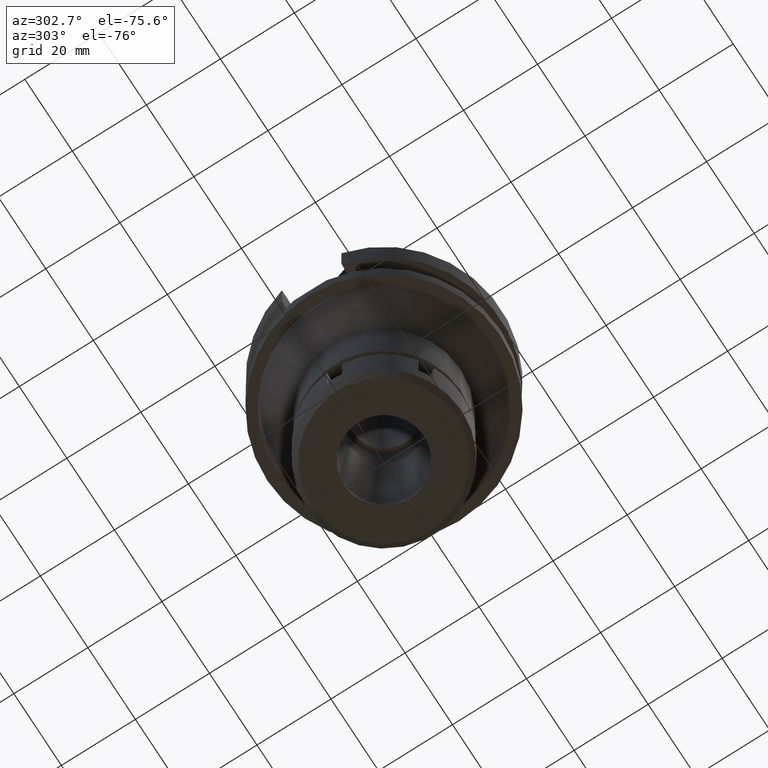
[diagram: clean part render]
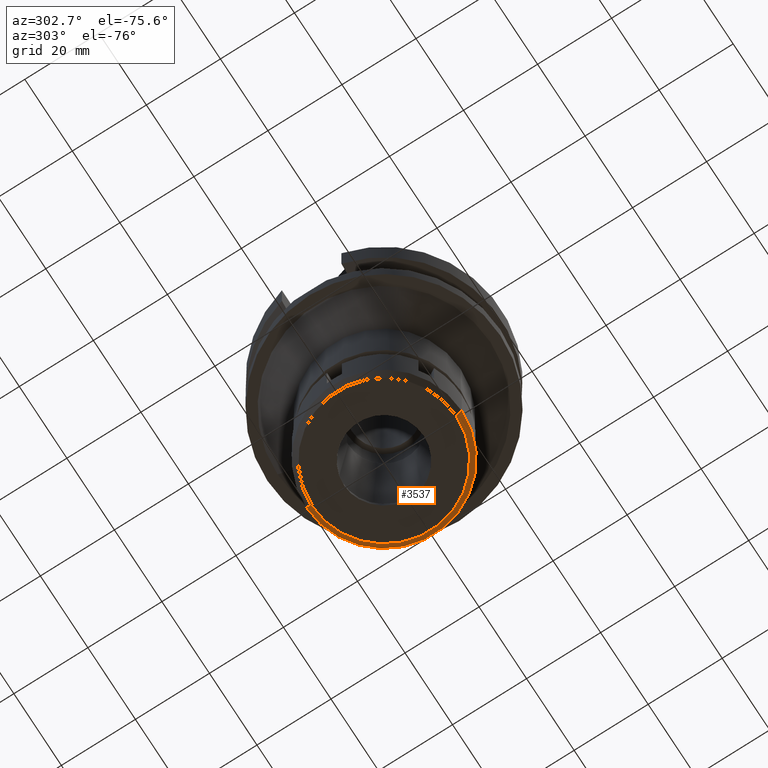
[diagram: same view with one face highlighted and labeled with its STEP entity id]
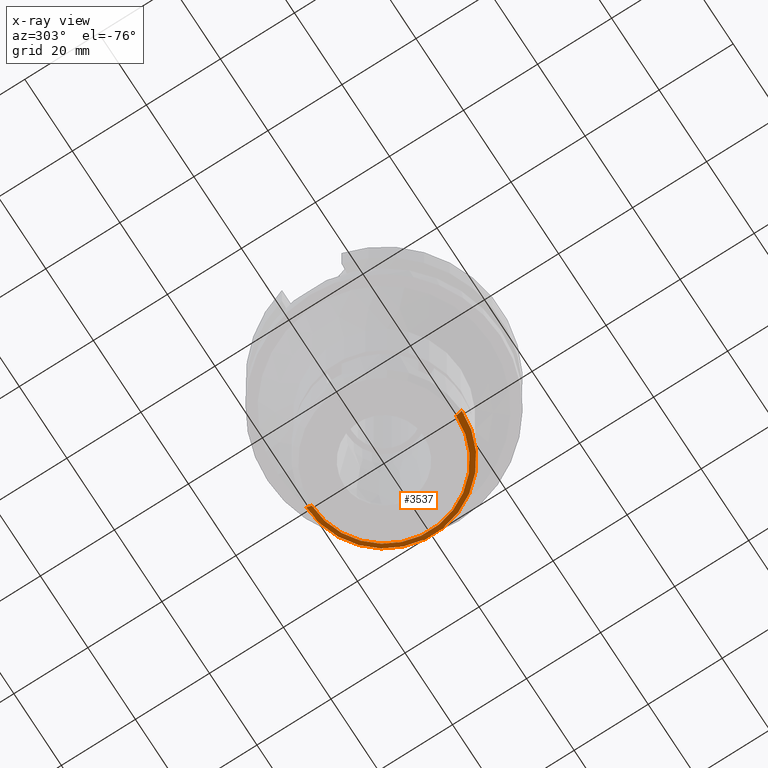
[diagram: x-ray of the same camera — body ghosted, the highlighted face saturated]
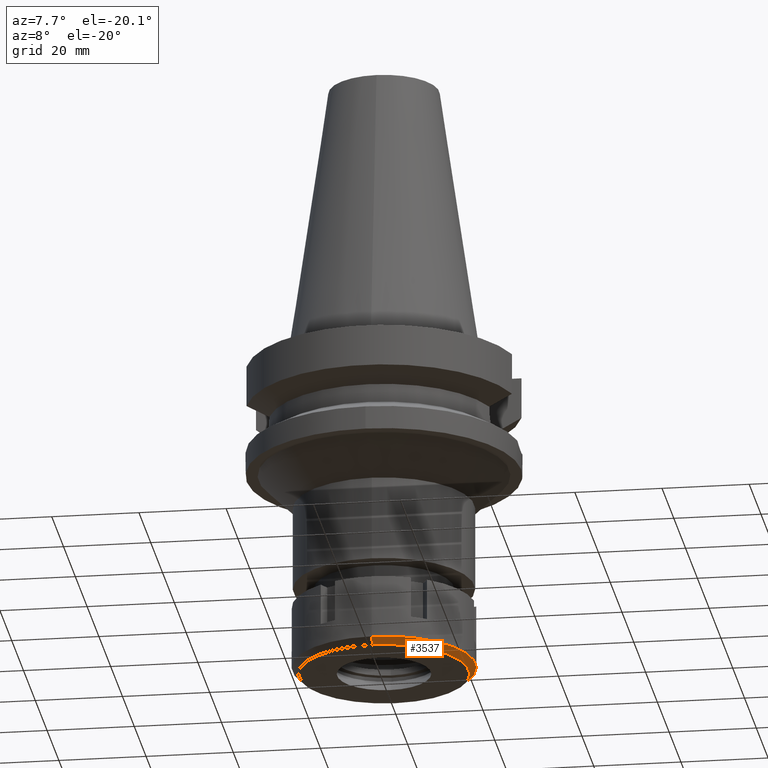
[diagram: same view with one face highlighted and labeled with its STEP entity id]
A machine part, auxiliary view. The second image highlights one B-rep face of the part: STEP entity #3537.
The next image is the same camera in x-ray: the body ghosted, the highlighted face saturated — about 0% of this face is hidden behind the body in this view.
A second angle (auxiliary view) of the same face is appended — the face is thin or edge-on in the first view.
In plain terms, the highlighted conical surface has half-angle 45 deg.
Its self-contained STEP definition (entity closure, byte-faithful):
#41 = CARTESIAN_POINT ( 'NONE',  ( 0.0000000000000000000, 21.00000000000000000, -14.50000000000000000 ) ) ;
#463 = AXIS2_PLACEMENT_3D ( 'NONE', #2139, #1320, #3248 ) ;
#619 = DIRECTION ( 'NONE',  ( 0.0000000000000000000, 0.7071067811865474617, -0.7071067811865474617 ) ) ;
#632 = DIRECTION ( 'NONE',  ( 0.0000000000000000000, -1.000000000000000000, 0.0000000000000000000 ) ) ;
#684 = EDGE_CURVE ( 'NONE', #1817, #3003, #2237, .T. ) ;
#705 = ORIENTED_EDGE ( 'NONE', *, *, #684, .T. ) ;
#798 = EDGE_CURVE ( 'NONE', #2423, #1817, #2479, .T. ) ;
#801 = EDGE_CURVE ( 'NONE', #2423, #1154, #2402, .T. ) ;
#907 = EDGE_CURVE ( 'NONE', #1154, #3003, #1422, .T. ) ;
#933 = VECTOR ( 'NONE', #2170, 1000.000000000000114 ) ;
#1115 = DIRECTION ( 'NONE',  ( 0.0000000000000000000, 0.0000000000000000000, 1.000000000000000000 ) ) ;
#1120 = CARTESIAN_POINT ( 'NONE',  ( 0.0000000000000000000, 0.0000000000000000000, -14.50000000000000000 ) ) ;
#1154 = VERTEX_POINT ( 'NONE', #41 ) ;
#1190 = ORIENTED_EDGE ( 'NONE', *, *, #798, .T. ) ;
#1320 = DIRECTION ( 'NONE',  ( 0.0000000000000000000, 0.0000000000000000000, 1.000000000000000000 ) ) ;
#1422 = LINE ( 'NONE', #2229, #933 ) ;
#1732 = VECTOR ( 'NONE', #619, 1000.000000000000114 ) ;
#1817 = VERTEX_POINT ( 'NONE', #2074 ) ;
#2006 = CONICAL_SURFACE ( 'NONE', #463, 20.25000000000000000, 0.7853981633972997312 ) ;
#2074 = CARTESIAN_POINT ( 'NONE',  ( 0.0000000000000000000, -19.50000000000000000, -16.00000000000000000 ) ) ;
#2139 = CARTESIAN_POINT ( 'NONE',  ( 0.0000000000000000000, 0.0000000000000000000, -15.25000000000000000 ) ) ;
#2170 = DIRECTION ( 'NONE',  ( 0.0000000000000000000, -0.7071067811865474617, -0.7071067811865474617 ) ) ;
#2229 = CARTESIAN_POINT ( 'NONE',  ( 0.0000000000000000000, 21.00000000000000000, -14.50000000000000000 ) ) ;
#2237 = CIRCLE ( 'NONE', #2567, 19.50000000000000000 ) ;
#2402 = CIRCLE ( 'NONE', #3279, 21.00000000000000000 ) ;
#2423 = VERTEX_POINT ( 'NONE', #2656 ) ;
#2479 = LINE ( 'NONE', #3040, #1732 ) ;
#2509 = DIRECTION ( 'NONE',  ( 0.0000000000000000000, 0.0000000000000000000, 1.000000000000000000 ) ) ;
#2567 = AXIS2_PLACEMENT_3D ( 'NONE', #2960, #1115, #2655 ) ;
#2581 = ORIENTED_EDGE ( 'NONE', *, *, #801, .F. ) ;
#2630 = CARTESIAN_POINT ( 'NONE',  ( 0.0000000000000000000, 19.50000000000000000, -16.00000000000000000 ) ) ;
#2655 = DIRECTION ( 'NONE',  ( 0.0000000000000000000, -1.000000000000000000, 0.0000000000000000000 ) ) ;
#2656 = CARTESIAN_POINT ( 'NONE',  ( 0.0000000000000000000, -21.00000000000000000, -14.50000000000000000 ) ) ;
#2687 = EDGE_LOOP ( 'NONE', ( #2581, #1190, #705, #3109 ) ) ;
#2887 = FACE_OUTER_BOUND ( 'NONE', #2687, .T. ) ;
#2960 = CARTESIAN_POINT ( 'NONE',  ( 0.0000000000000000000, 0.0000000000000000000, -16.00000000000000000 ) ) ;
#3003 = VERTEX_POINT ( 'NONE', #2630 ) ;
#3040 = CARTESIAN_POINT ( 'NONE',  ( 0.0000000000000000000, -21.00000000000000000, -14.50000000000000000 ) ) ;
#3109 = ORIENTED_EDGE ( 'NONE', *, *, #907, .F. ) ;
#3248 = DIRECTION ( 'NONE',  ( 0.0000000000000000000, 1.000000000000000000, 0.0000000000000000000 ) ) ;
#3279 = AXIS2_PLACEMENT_3D ( 'NONE', #1120, #2509, #632 ) ;
#3537 = ADVANCED_FACE ( 'NONE', ( #2887 ), #2006, .T. ) ;